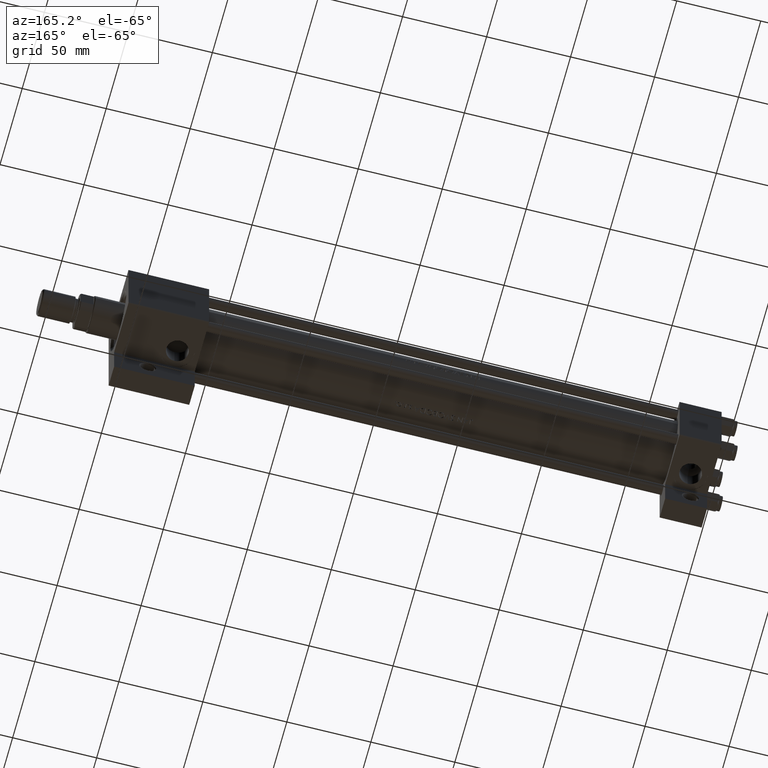
[diagram: clean part render]
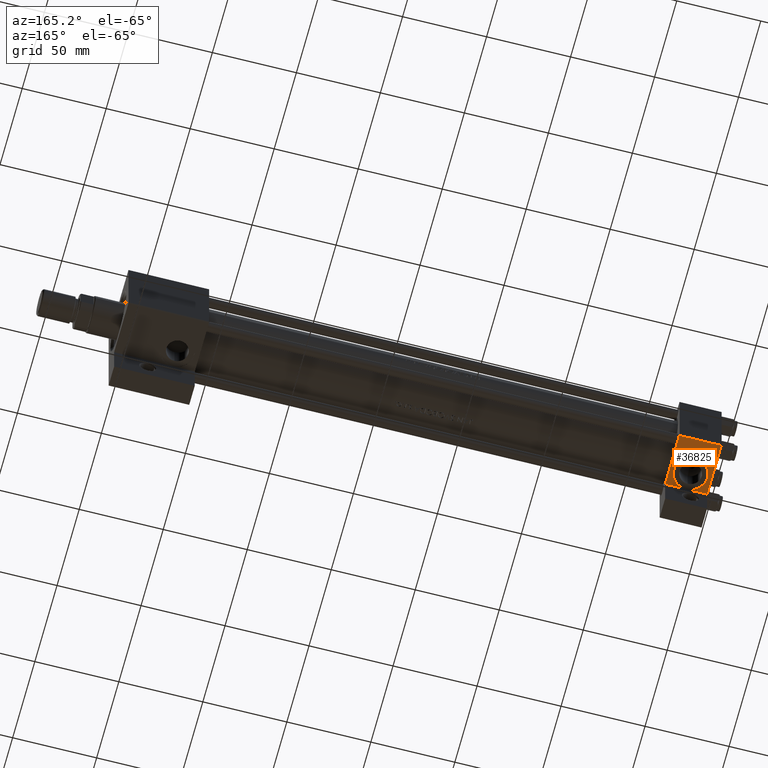
[diagram: same view with one face highlighted and labeled with its STEP entity id]
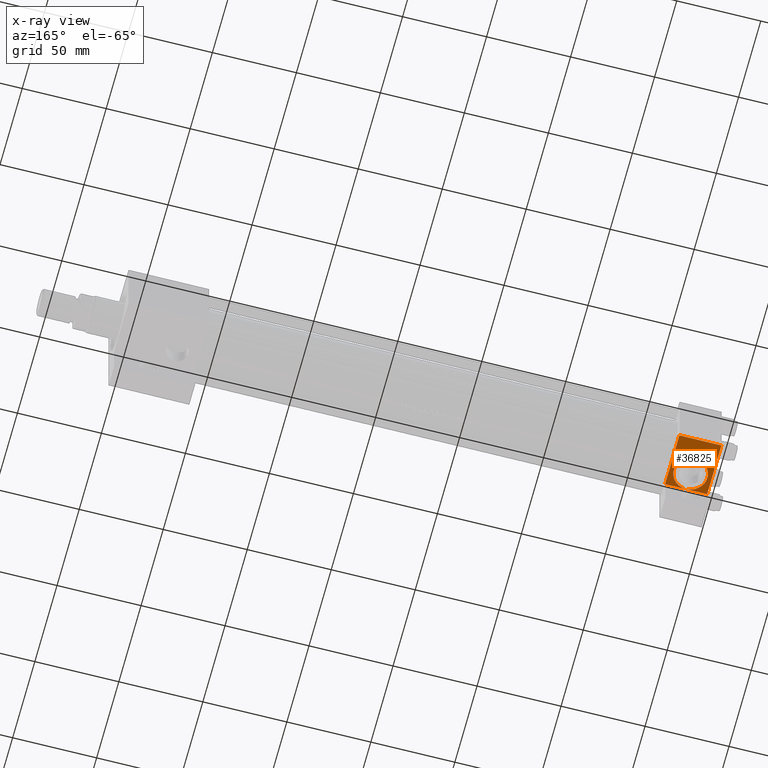
[diagram: x-ray of the same camera — body ghosted, the highlighted face saturated]
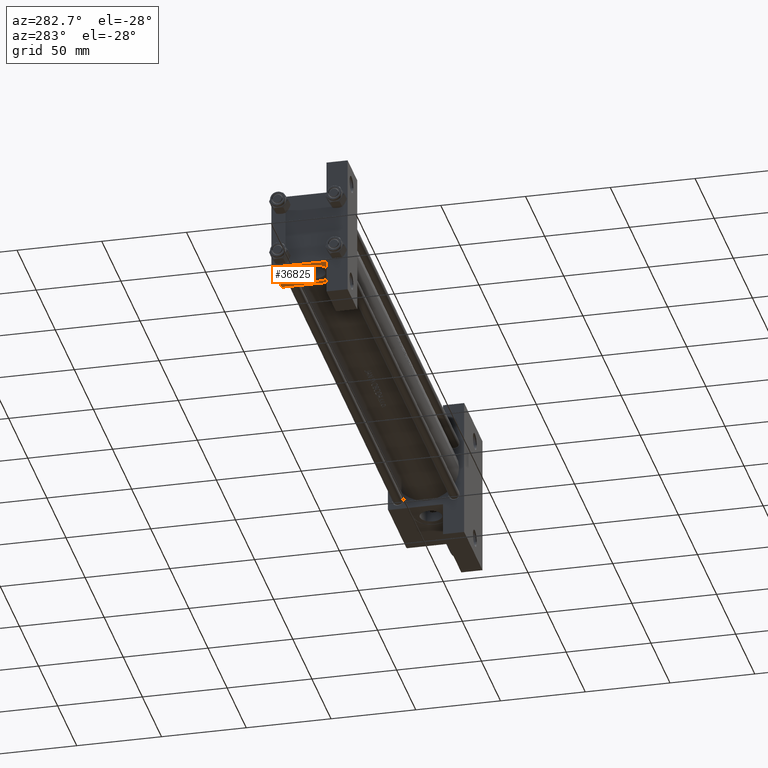
[diagram: same view with one face highlighted and labeled with its STEP entity id]
A machine part, auxiliary view. The second image highlights one B-rep face of the part: STEP entity #36825.
The next image is the same camera in x-ray: the body ghosted, the highlighted face saturated — about 0% of this face is hidden behind the body in this view.
A second angle (auxiliary view) of the same face is appended — the face is thin or edge-on in the first view.
In plain terms, the highlighted planar face has unit normal (0, 0, -1).
Its self-contained STEP definition (entity closure, byte-faithful):
#299 = CARTESIAN_POINT ( 'NONE',  ( 0.000000000000000000, 22.50000000000000000, -9.999999999999984013 ) ) ;
#1569 = ORIENTED_EDGE ( 'NONE', *, *, #33517, .F. ) ;
#1589 = ORIENTED_EDGE ( 'NONE', *, *, #16377, .F. ) ;
#1884 = VERTEX_POINT ( 'NONE', #299 ) ;
#4645 = VECTOR ( 'NONE', #11546, 1000.000000000000000 ) ;
#6726 = VECTOR ( 'NONE', #45823, 1000.000000000000000 ) ;
#7963 = VERTEX_POINT ( 'NONE', #44657 ) ;
#8378 = CARTESIAN_POINT ( 'NONE',  ( 12.50000000000000000, 22.50000000000000000, 9.999999999999996447 ) ) ;
#11234 = DIRECTION ( 'NONE',  ( 0.000000000000000000, 1.000000000000000000, 0.000000000000000000 ) ) ;
#11311 = LINE ( 'NONE', #33411, #4645 ) ;
#11546 = DIRECTION ( 'NONE',  ( 0.000000000000000000, 0.000000000000000000, -1.000000000000000000 ) ) ;
#11859 = CIRCLE ( 'NONE', #39008, 9.999999999999996447 ) ;
#12358 = AXIS2_PLACEMENT_3D ( 'NONE', #27167, #16244, #46113 ) ;
#14532 = EDGE_LOOP ( 'NONE', ( #24165, #1589, #29930, #35037, #46738, #25339, #1569 ) ) ;
#14593 = VECTOR ( 'NONE', #27267, 1000.000000000000000 ) ;
#15695 = VERTEX_POINT ( 'NONE', #8378 ) ;
#16244 = DIRECTION ( 'NONE',  ( -0.000000000000000000, 1.000000000000000000, 0.000000000000000000 ) ) ;
#16377 = EDGE_CURVE ( 'NONE', #7963, #1884, #46310, .T. ) ;
#16484 = FACE_OUTER_BOUND ( 'NONE', #14532, .T. ) ;
#16719 = DIRECTION ( 'NONE',  ( 1.000000000000000000, 0.000000000000000000, 0.000000000000000000 ) ) ;
#17041 = CIRCLE ( 'NONE', #23232, 9.999999999999996447 ) ;
#18175 = VERTEX_POINT ( 'NONE', #35325 ) ;
#19432 = EDGE_CURVE ( 'NONE', #29552, #18175, #31406, .T. ) ;
#20346 = CARTESIAN_POINT ( 'NONE',  ( 25.00000000000000000, 22.50000000000000000, 21.99999999999999645 ) ) ;
#22135 = EDGE_CURVE ( 'NONE', #7963, #41375, #42694, .T. ) ;
#22155 = CARTESIAN_POINT ( 'NONE',  ( 12.50000000000000000, 22.50000000000000000, 0.000000000000000000 ) ) ;
#23232 = AXIS2_PLACEMENT_3D ( 'NONE', #22155, #11234, #29457 ) ;
#24165 = ORIENTED_EDGE ( 'NONE', *, *, #24607, .F. ) ;
#24607 = EDGE_CURVE ( 'NONE', #1884, #29552, #30222, .T. ) ;
#25339 = ORIENTED_EDGE ( 'NONE', *, *, #46321, .F. ) ;
#27167 = CARTESIAN_POINT ( 'NONE',  ( 25.00000000000000000, 22.50000000000000000, 22.50000000000000355 ) ) ;
#27267 = DIRECTION ( 'NONE',  ( 1.000000000000000000, -1.387778780781445922E-16, 0.000000000000000000 ) ) ;
#28890 = CARTESIAN_POINT ( 'NONE',  ( 12.50000000000000000, 22.50000000000000000, 0.000000000000000000 ) ) ;
#29457 = DIRECTION ( 'NONE',  ( 0.000000000000000000, 0.000000000000000000, 1.000000000000000000 ) ) ;
#29552 = VERTEX_POINT ( 'NONE', #31882 ) ;
#29930 = ORIENTED_EDGE ( 'NONE', *, *, #22135, .T. ) ;
#30222 = LINE ( 'NONE', #42349, #36926 ) ;
#30454 = DIRECTION ( 'NONE',  ( 1.000000000000000000, -1.387778780781445922E-16, 0.000000000000000000 ) ) ;
#31305 = PLANE ( 'NONE',  #12358 ) ;
#31406 = LINE ( 'NONE', #38198, #14593 ) ;
#31882 = CARTESIAN_POINT ( 'NONE',  ( 12.50000000000000000, 22.50000000000000000, -9.999999999999998224 ) ) ;
#32523 = VECTOR ( 'NONE', #16719, 1000.000000000000000 ) ;
#33411 = CARTESIAN_POINT ( 'NONE',  ( 25.00000000000000000, 22.50000000000000000, 22.50000000000000355 ) ) ;
#33517 = EDGE_CURVE ( 'NONE', #29552, #15695, #17041, .T. ) ;
#34000 = CARTESIAN_POINT ( 'NONE',  ( 0.000000000000000000, 22.50000000000000000, 22.50000000000000355 ) ) ;
#35037 = ORIENTED_EDGE ( 'NONE', *, *, #38424, .T. ) ;
#35325 = CARTESIAN_POINT ( 'NONE',  ( 25.00000000000000711, 22.50000000000001421, -9.999999999999994671 ) ) ;
#36825 = ADVANCED_FACE ( 'NONE', ( #16484 ), #31305, .T. ) ;
#36926 = VECTOR ( 'NONE', #30454, 1000.000000000000000 ) ;
#38113 = CARTESIAN_POINT ( 'NONE',  ( 25.00000000000000000, 22.50000000000000000, 21.99999999999999645 ) ) ;
#38198 = CARTESIAN_POINT ( 'NONE',  ( 5.446861777336497925E-15, 22.50000000000001776, -9.999999999999998224 ) ) ;
#38424 = EDGE_CURVE ( 'NONE', #41375, #18175, #11311, .T. ) ;
#39008 = AXIS2_PLACEMENT_3D ( 'NONE', #28890, #48066, #47346 ) ;
#41375 = VERTEX_POINT ( 'NONE', #38113 ) ;
#42349 = CARTESIAN_POINT ( 'NONE',  ( 5.446861777336497925E-15, 22.50000000000001776, -9.999999999999998224 ) ) ;
#42694 = LINE ( 'NONE', #20346, #32523 ) ;
#44657 = CARTESIAN_POINT ( 'NONE',  ( 0.000000000000000000, 22.50000000000000000, 21.99999999999999645 ) ) ;
#45823 = DIRECTION ( 'NONE',  ( 0.000000000000000000, 0.000000000000000000, -1.000000000000000000 ) ) ;
#46113 = DIRECTION ( 'NONE',  ( 0.000000000000000000, -0.000000000000000000, 1.000000000000000000 ) ) ;
#46310 = LINE ( 'NONE', #34000, #6726 ) ;
#46321 = EDGE_CURVE ( 'NONE', #15695, #29552, #11859, .T. ) ;
#46738 = ORIENTED_EDGE ( 'NONE', *, *, #19432, .F. ) ;
#47346 = DIRECTION ( 'NONE',  ( 0.000000000000000000, 0.000000000000000000, 1.000000000000000000 ) ) ;
#48066 = DIRECTION ( 'NONE',  ( 0.000000000000000000, 1.000000000000000000, 0.000000000000000000 ) ) ;